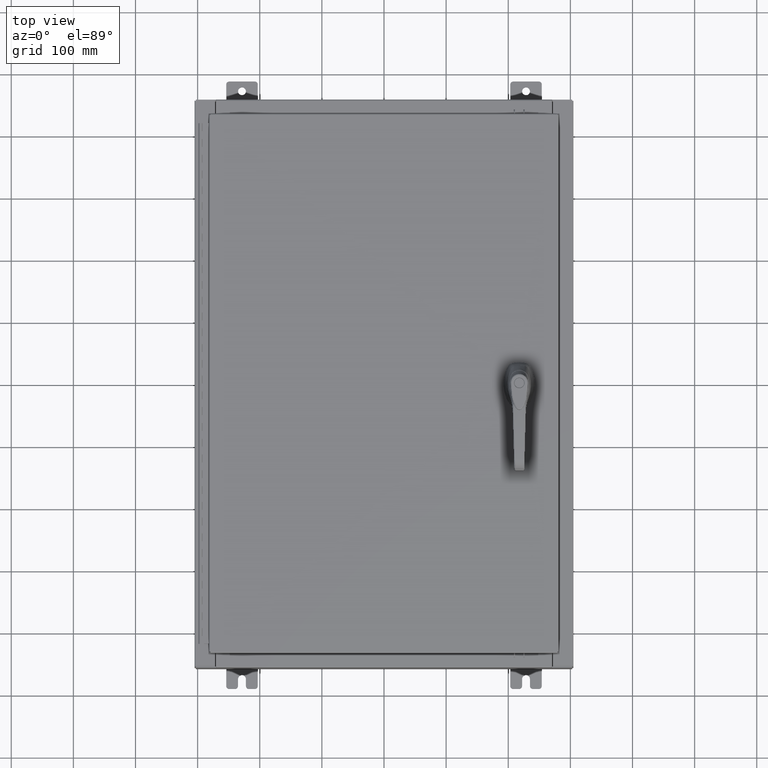
[diagram: clean part render]
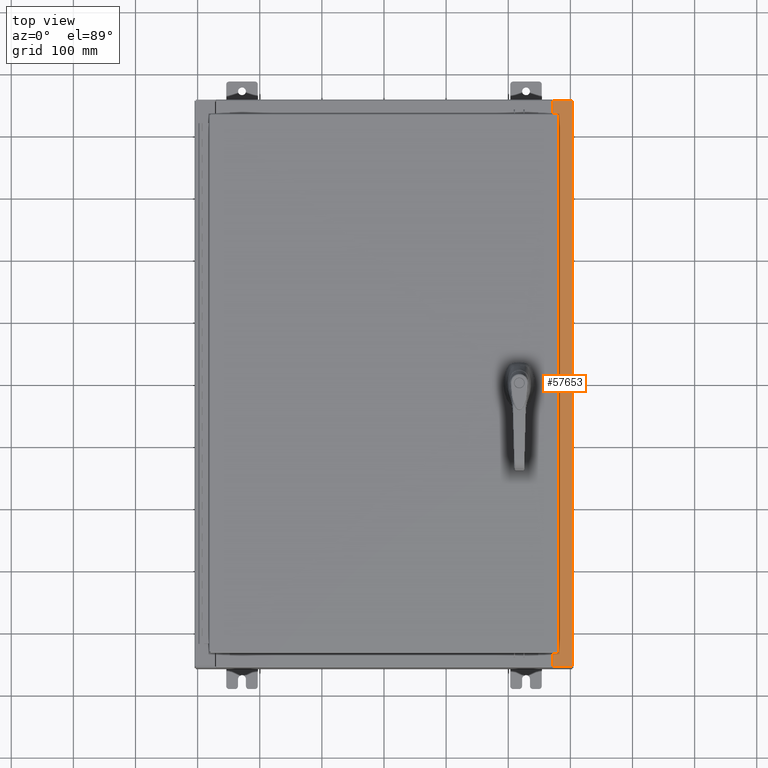
[diagram: same view with one face highlighted and labeled with its STEP entity id]
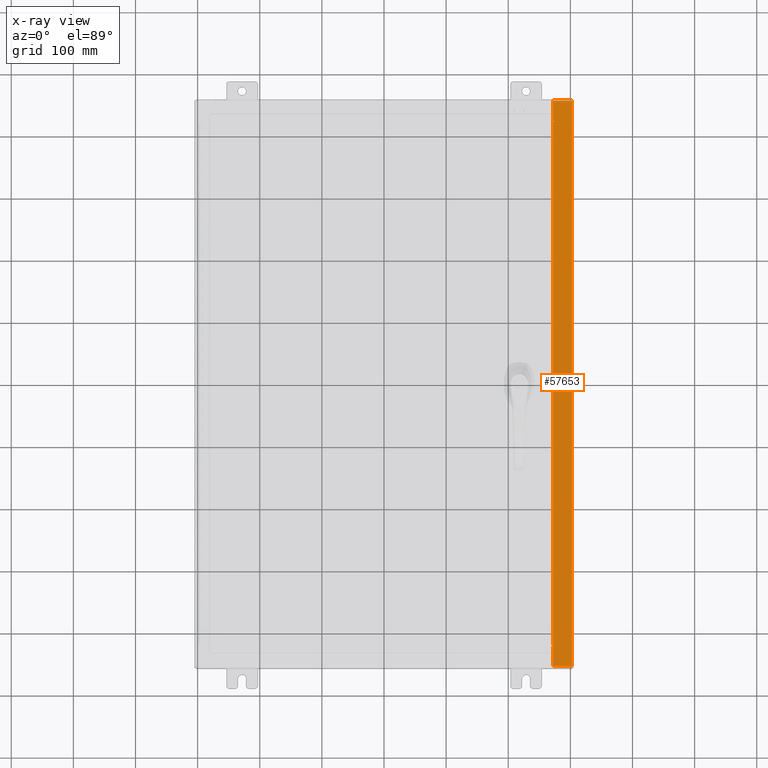
[diagram: x-ray of the same camera — body ghosted, the highlighted face saturated]
A machine part, top view. The second image highlights one B-rep face of the part: STEP entity #57653.
The next image is the same camera in x-ray: the body ghosted, the highlighted face saturated — about 0% of this face is hidden behind the body in this view.
In plain terms, the highlighted planar face has unit normal (-0, 0, -1).
Its self-contained STEP definition (entity closure, byte-faithful):
#730 = VECTOR ( 'NONE', #42718, 39.37007874015748100 ) ;
#880 = CARTESIAN_POINT ( 'NONE',  ( 10.69970000000002100, -17.92530000000000000, 5.925300000000009800 ) ) ;
#1852 = VECTOR ( 'NONE', #99432, 39.37007874015748100 ) ;
#3580 = VERTEX_POINT ( 'NONE', #91707 ) ;
#4875 = VERTEX_POINT ( 'NONE', #880 ) ;
#6279 = LINE ( 'NONE', #123084, #104633 ) ;
#7325 = EDGE_LOOP ( 'NONE', ( #99163, #63414, #116809, #112485, #40430, #84171, #87024, #98272, #113543, #52896, #113444, #110654 ) ) ;
#13622 = VERTEX_POINT ( 'NONE', #109606 ) ;
#14216 = CARTESIAN_POINT ( 'NONE',  ( 10.71270000000002100, -16.59375000000000000, 5.925300000000011600 ) ) ;
#15635 = LINE ( 'NONE', #14216, #91642 ) ;
#16195 = LINE ( 'NONE', #104129, #66975 ) ;
#17155 = CARTESIAN_POINT ( 'NONE',  ( 10.75005000000002100, -16.63110000000000000, 5.925300000000009800 ) ) ;
#18102 = LINE ( 'NONE', #67878, #85164 ) ;
#19944 = EDGE_CURVE ( 'NONE', #91251, #88678, #48833, .T. ) ;
#20713 = DIRECTION ( 'NONE',  ( 7.132762385546384700E-015, 0.0000000000000000000, 1.000000000000000000 ) ) ;
#21088 = CIRCLE ( 'NONE', #108517, 0.01867499999999949400 ) ;
#26044 = LINE ( 'NONE', #48291, #76730 ) ;
#26141 = CARTESIAN_POINT ( 'NONE',  ( 11.91230000000002000, 17.92530000000000000, 5.925300000000001800 ) ) ;
#26222 = LINE ( 'NONE', #31338, #730 ) ;
#27737 = VERTEX_POINT ( 'NONE', #70692 ) ;
#28313 = FACE_OUTER_BOUND ( 'NONE', #7325, .T. ) ;
#31338 = CARTESIAN_POINT ( 'NONE',  ( 10.75005000000002100, 16.63110000000000000, 5.925300000000011600 ) ) ;
#31501 = CARTESIAN_POINT ( 'NONE',  ( 10.75005000000002100, 16.59375000000000000, 5.925300000000009800 ) ) ;
#34663 = CARTESIAN_POINT ( 'NONE',  ( 10.69970000000002100, 17.92530000000000000, 5.925300000000009800 ) ) ;
#36064 = CARTESIAN_POINT ( 'NONE',  ( 4.252457061909019600E-014, 0.0000000000000000000, 5.925300000000087100 ) ) ;
#36419 = DIRECTION ( 'NONE',  ( 7.132762385546384700E-015, 0.0000000000000000000, 1.000000000000000000 ) ) ;
#39727 = DIRECTION ( 'NONE',  ( 0.0000000000000000000, -1.000000000000000000, 0.0000000000000000000 ) ) ;
#40430 = ORIENTED_EDGE ( 'NONE', *, *, #123131, .T. ) ;
#40511 = CARTESIAN_POINT ( 'NONE',  ( 1.056034422168157600E-014, -17.92529999999998200, 5.925300000000087100 ) ) ;
#42718 = DIRECTION ( 'NONE',  ( -1.000000000000000000, 4.340572780400098900E-014, -2.170286390200049500E-014 ) ) ;
#43360 = VERTEX_POINT ( 'NONE', #26141 ) ;
#43809 = CARTESIAN_POINT ( 'NONE',  ( 10.75005000000002100, 16.63110000000000000, 5.925300000000009800 ) ) ;
#44287 = EDGE_CURVE ( 'NONE', #13622, #4875, #48886, .T. ) ;
#47369 = DIRECTION ( 'NONE',  ( -1.000000000000000000, 0.0000000000000000000, 0.0000000000000000000 ) ) ;
#47683 = EDGE_CURVE ( 'NONE', #27737, #91251, #52880, .T. ) ;
#48291 = CARTESIAN_POINT ( 'NONE',  ( 10.69970000000002100, -16.63110000000000400, 5.925300000000009800 ) ) ;
#48833 = CIRCLE ( 'NONE', #109870, 0.01867499999999949400 ) ;
#48886 = LINE ( 'NONE', #91266, #93346 ) ;
#49359 = CARTESIAN_POINT ( 'NONE',  ( 10.69970000000002100, 0.0000000000000000000, 5.925300000000009800 ) ) ;
#52880 = LINE ( 'NONE', #61375, #1852 ) ;
#52896 = ORIENTED_EDGE ( 'NONE', *, *, #97732, .F. ) ;
#55295 = PLANE ( 'NONE',  #66438 ) ;
#55311 = LINE ( 'NONE', #49359, #77541 ) ;
#57653 = ADVANCED_FACE ( 'NONE', ( #28313 ), #55295, .F. ) ;
#59518 = CARTESIAN_POINT ( 'NONE',  ( 11.91230000000002000, -17.92530000000000000, 5.925300000000001800 ) ) ;
#61375 = CARTESIAN_POINT ( 'NONE',  ( 10.71270000000002100, 16.59375000000000000, 5.925300000000011600 ) ) ;
#63414 = ORIENTED_EDGE ( 'NONE', *, *, #44287, .T. ) ;
#63527 = EDGE_CURVE ( 'NONE', #88678, #102449, #26222, .T. ) ;
#64849 = DIRECTION ( 'NONE',  ( -1.000000000000000000, 0.0000000000000000000, 7.132762385546384700E-015 ) ) ;
#66438 = AXIS2_PLACEMENT_3D ( 'NONE', #36064, #121493, #64849 ) ;
#66449 = DIRECTION ( 'NONE',  ( -0.0000000000000000000, -1.000000000000000000, -0.0000000000000000000 ) ) ;
#66975 = VECTOR ( 'NONE', #66449, 39.37007874015748100 ) ;
#67678 = EDGE_CURVE ( 'NONE', #4875, #86782, #82301, .T. ) ;
#67878 = CARTESIAN_POINT ( 'NONE',  ( 4.252457061909019600E-014, 17.92529999999999600, 5.925300000000087100 ) ) ;
#70692 = CARTESIAN_POINT ( 'NONE',  ( 10.71270000000002100, 16.59375000000000000, 5.925300000000011600 ) ) ;
#71489 = DIRECTION ( 'NONE',  ( -0.0000000000000000000, 1.000000000000000000, -0.0000000000000000000 ) ) ;
#76730 = VECTOR ( 'NONE', #114533, 39.37007874015748100 ) ;
#77419 = DIRECTION ( 'NONE',  ( -1.000000000000000000, 0.0000000000000000000, 7.132762385546384700E-015 ) ) ;
#77541 = VECTOR ( 'NONE', #39727, 39.37007874015748100 ) ;
#77846 = CARTESIAN_POINT ( 'NONE',  ( 10.75005000000002100, -16.61242500000000200, 5.925300000000011600 ) ) ;
#79315 = VECTOR ( 'NONE', #106904, 39.37007874015748100 ) ;
#82301 = LINE ( 'NONE', #40511, #79315 ) ;
#83240 = VERTEX_POINT ( 'NONE', #103840 ) ;
#84171 = ORIENTED_EDGE ( 'NONE', *, *, #112508, .T. ) ;
#85164 = VECTOR ( 'NONE', #77419, 39.37007874015748100 ) ;
#86782 = VERTEX_POINT ( 'NONE', #59518 ) ;
#87002 = EDGE_CURVE ( 'NONE', #3580, #83240, #6279, .T. ) ;
#87024 = ORIENTED_EDGE ( 'NONE', *, *, #63527, .F. ) ;
#87338 = DIRECTION ( 'NONE',  ( 1.000000000000000000, 0.0000000000000000000, 0.0000000000000000000 ) ) ;
#88352 = EDGE_CURVE ( 'NONE', #104842, #3580, #21088, .T. ) ;
#88678 = VERTEX_POINT ( 'NONE', #43809 ) ;
#91251 = VERTEX_POINT ( 'NONE', #31501 ) ;
#91266 = CARTESIAN_POINT ( 'NONE',  ( 10.69970000000002100, 0.0000000000000000000, 5.925300000000009800 ) ) ;
#91642 = VECTOR ( 'NONE', #71489, 39.37007874015748100 ) ;
#91707 = CARTESIAN_POINT ( 'NONE',  ( 10.75005000000002100, -16.59375000000000000, 5.925300000000009800 ) ) ;
#91832 = EDGE_CURVE ( 'NONE', #43360, #86782, #16195, .T. ) ;
#93345 = CARTESIAN_POINT ( 'NONE',  ( 10.75005000000002100, 16.61242500000000200, 5.925300000000011600 ) ) ;
#93346 = VECTOR ( 'NONE', #119775, 39.37007874015748100 ) ;
#97732 = EDGE_CURVE ( 'NONE', #83240, #27737, #15635, .T. ) ;
#98272 = ORIENTED_EDGE ( 'NONE', *, *, #19944, .F. ) ;
#99163 = ORIENTED_EDGE ( 'NONE', *, *, #104114, .F. ) ;
#99432 = DIRECTION ( 'NONE',  ( 1.000000000000000000, 0.0000000000000000000, 0.0000000000000000000 ) ) ;
#102449 = VERTEX_POINT ( 'NONE', #113854 ) ;
#102885 = DIRECTION ( 'NONE',  ( 1.000000000000000000, 0.0000000000000000000, 0.0000000000000000000 ) ) ;
#103840 = CARTESIAN_POINT ( 'NONE',  ( 10.71270000000002100, -16.59375000000000000, 5.925300000000011600 ) ) ;
#104114 = EDGE_CURVE ( 'NONE', #13622, #104842, #26044, .T. ) ;
#104129 = CARTESIAN_POINT ( 'NONE',  ( 11.91230000000002000, -17.92530000000000000, 5.925300000000001800 ) ) ;
#104633 = VECTOR ( 'NONE', #47369, 39.37007874015748100 ) ;
#104842 = VERTEX_POINT ( 'NONE', #17155 ) ;
#106904 = DIRECTION ( 'NONE',  ( 1.000000000000000000, -1.783190596386596200E-015, -7.132762385546384700E-015 ) ) ;
#108517 = AXIS2_PLACEMENT_3D ( 'NONE', #77846, #20713, #87338 ) ;
#109606 = CARTESIAN_POINT ( 'NONE',  ( 10.69970000000002100, -16.63110000000000400, 5.925300000000009800 ) ) ;
#109870 = AXIS2_PLACEMENT_3D ( 'NONE', #93345, #36419, #102885 ) ;
#110654 = ORIENTED_EDGE ( 'NONE', *, *, #88352, .F. ) ;
#112485 = ORIENTED_EDGE ( 'NONE', *, *, #91832, .F. ) ;
#112508 = EDGE_CURVE ( 'NONE', #113525, #102449, #55311, .T. ) ;
#113444 = ORIENTED_EDGE ( 'NONE', *, *, #87002, .F. ) ;
#113525 = VERTEX_POINT ( 'NONE', #34663 ) ;
#113543 = ORIENTED_EDGE ( 'NONE', *, *, #47683, .F. ) ;
#113854 = CARTESIAN_POINT ( 'NONE',  ( 10.69970000000002100, 16.63110000000000000, 5.925300000000009800 ) ) ;
#114533 = DIRECTION ( 'NONE',  ( 1.000000000000000000, 4.340572780400098900E-014, 2.170286390200049500E-014 ) ) ;
#116809 = ORIENTED_EDGE ( 'NONE', *, *, #67678, .T. ) ;
#119775 = DIRECTION ( 'NONE',  ( 0.0000000000000000000, -1.000000000000000000, 0.0000000000000000000 ) ) ;
#121493 = DIRECTION ( 'NONE',  ( -7.132762385546384700E-015, 0.0000000000000000000, -1.000000000000000000 ) ) ;
#123084 = CARTESIAN_POINT ( 'NONE',  ( 10.75005000000002100, -16.59375000000000000, 5.925300000000011600 ) ) ;
#123131 = EDGE_CURVE ( 'NONE', #43360, #113525, #18102, .T. ) ;